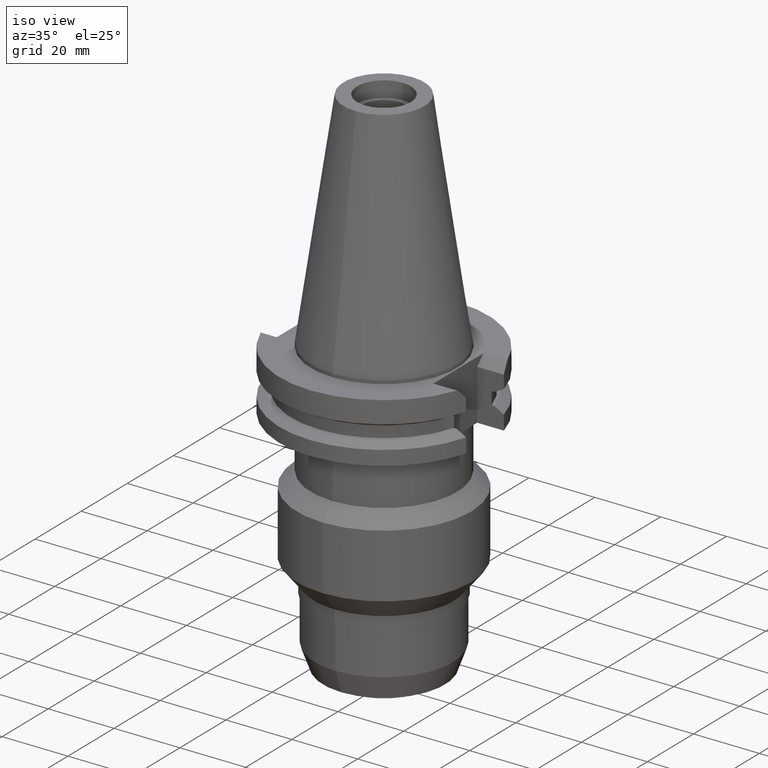
[diagram: clean part render]
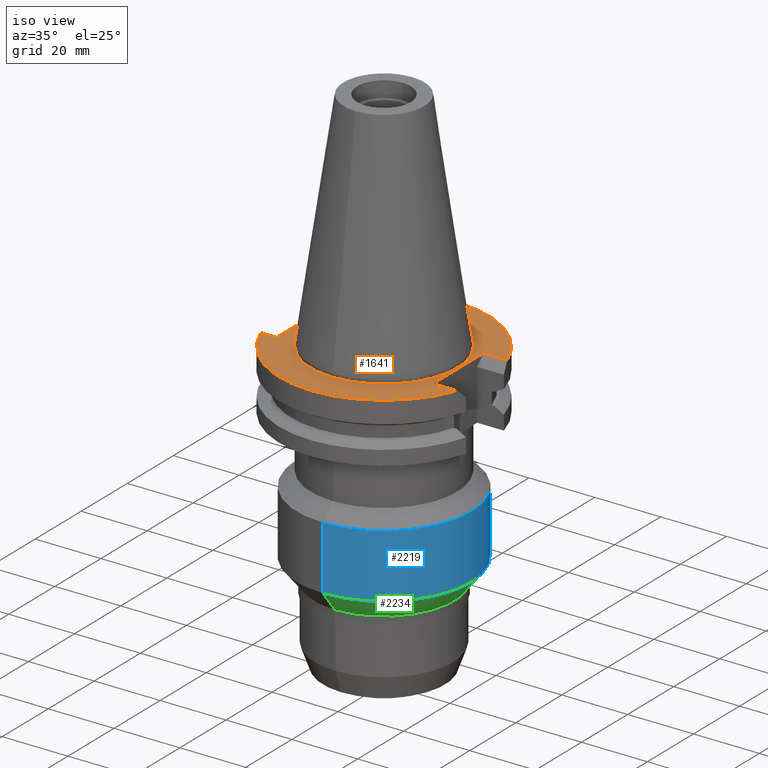
[diagram: same view with three faces highlighted in distinct colors, each labeled with its STEP entity id]
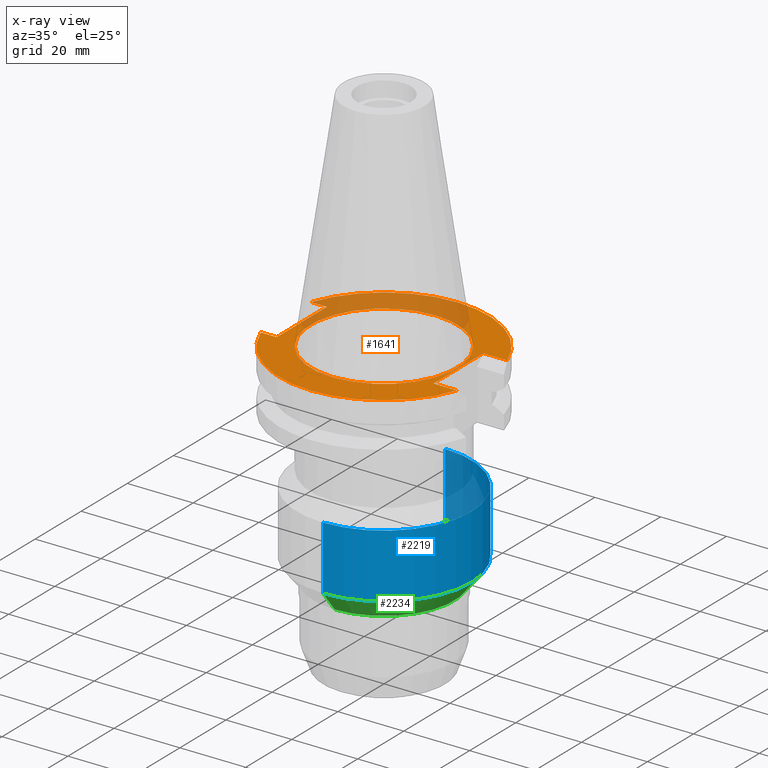
[diagram: x-ray of the same camera — body ghosted, the three highlighted faces saturated]
A machine part, iso view with three faces highlighted in distinct colors.
The next image is the same camera in x-ray (body ghosted, the three faces saturated) — at least one of them is partly hidden behind the body in this view.
Their STEP definitions:

[orange] entity #1641 — the highlighted planar face has unit normal (0, 0, -1).
#94=DIRECTION('',(0.E0,-1.E0,0.E0));
#95=VECTOR('',#94,2.178E1);
#96=CARTESIAN_POINT('',(2.257E1,1.089E1,-1.E0));
#97=LINE('',#96,#95);
#101=DIRECTION('',(1.E0,5.877118954908E-14,0.E0));
#102=VECTOR('',#101,7.253990343347E0);
#103=CARTESIAN_POINT('',(2.257E1,-1.089E1,-1.E0));
#104=LINE('',#103,#102);
#108=CARTESIAN_POINT('',(0.E0,2.157919508608E-14,-1.E0));
#109=DIRECTION('',(0.E0,0.E0,-1.E0));
#110=DIRECTION('',(9.393382785306E-1,-3.429921259843E-1,0.E0));
#111=AXIS2_PLACEMENT_3D('',#108,#109,#110);
#116=CARTESIAN_POINT('',(0.E0,2.157919508608E-14,-1.E0));
#117=DIRECTION('',(0.E0,0.E0,-1.E0));
#118=DIRECTION('',(0.E0,-1.E0,0.E0));
#119=AXIS2_PLACEMENT_3D('',#116,#117,#118);
#124=DIRECTION('',(-1.E0,-8.727782216946E-14,0.E0));
#125=VECTOR('',#124,4.843990343348E0);
#126=CARTESIAN_POINT('',(-2.498E1,1.089E1,-1.E0));
#127=LINE('',#126,#125);
#131=CARTESIAN_POINT('',(0.E0,2.157919508608E-14,-1.E0));
#132=DIRECTION('',(0.E0,0.E0,-1.E0));
#133=DIRECTION('',(-9.393382785306E-1,3.429921259843E-1,0.E0));
#134=AXIS2_PLACEMENT_3D('',#131,#132,#133);
#139=CARTESIAN_POINT('',(0.E0,2.157919508608E-14,-1.E0));
#140=DIRECTION('',(0.E0,0.E0,-1.E0));
#141=DIRECTION('',(0.E0,1.E0,0.E0));
#142=AXIS2_PLACEMENT_3D('',#139,#140,#141);
#147=CARTESIAN_POINT('',(0.E0,2.157919508608E-14,-1.E0));
#148=DIRECTION('',(0.E0,0.E0,1.E0));
#149=DIRECTION('',(0.E0,-1.E0,0.E0));
#150=AXIS2_PLACEMENT_3D('',#147,#148,#149);
#155=CARTESIAN_POINT('',(0.E0,2.157919508608E-14,-1.E0));
#156=DIRECTION('',(0.E0,0.E0,1.E0));
#157=DIRECTION('',(0.E0,1.E0,0.E0));
#158=AXIS2_PLACEMENT_3D('',#155,#156,#157);
#291=DIRECTION('',(1.E0,-5.779166972326E-14,0.E0));
#292=VECTOR('',#291,7.253990343348E0);
#293=CARTESIAN_POINT('',(2.257E1,1.089E1,-1.E0));
#294=LINE('',#293,#292);
#308=CARTESIAN_POINT('',(2.982399034335E1,1.089E1,-1.000000000001E0));
#335=DIRECTION('',(0.E0,-1.E0,0.E0));
#336=VECTOR('',#335,2.178E1);
#337=CARTESIAN_POINT('',(-2.498E1,1.089E1,-1.E0));
#338=LINE('',#337,#336);
#561=DIRECTION('',(-1.E0,8.727782216946E-14,0.E0));
#562=VECTOR('',#561,4.843990343348E0);
#563=CARTESIAN_POINT('',(-2.498E1,-1.089E1,-1.E0));
#564=LINE('',#563,#562);
#575=CARTESIAN_POINT('',(2.982399034335E1,-1.089E1,-1.000000000001E0));
#600=CARTESIAN_POINT('',(-2.982399034335E1,-1.089E1,-1.000000000001E0));
#1424=CARTESIAN_POINT('',(2.257E1,-1.089E1,-1.E0));
#1425=VERTEX_POINT('',#1424);
#1426=CARTESIAN_POINT('',(2.257E1,1.089E1,-1.E0));
#1427=VERTEX_POINT('',#1426);
#1467=CARTESIAN_POINT('',(-2.498E1,1.089E1,-1.E0));
#1468=VERTEX_POINT('',#1467);
#1469=CARTESIAN_POINT('',(-2.498E1,-1.089E1,-1.E0));
#1470=VERTEX_POINT('',#1469);
#1513=VERTEX_POINT('',#575);
#1514=VERTEX_POINT('',#600);
#1515=CARTESIAN_POINT('',(0.E0,-3.175E1,-1.E0));
#1516=VERTEX_POINT('',#1515);
#1519=VERTEX_POINT('',#308);
#1520=CARTESIAN_POINT('',(0.E0,3.175E1,-1.E0));
#1521=VERTEX_POINT('',#1520);
#1522=CARTESIAN_POINT('',(-2.982399034335E1,1.089E1,-1.E0));
#1523=VERTEX_POINT('',#1522);
#1524=CARTESIAN_POINT('',(0.E0,-2.2225E1,-1.E0));
#1525=CARTESIAN_POINT('',(0.E0,2.2225E1,-1.E0));
#1526=VERTEX_POINT('',#1524);
#1527=VERTEX_POINT('',#1525);
#1610=CARTESIAN_POINT('',(0.E0,1.212400331156E-14,-1.E0));
#1611=DIRECTION('',(0.E0,0.E0,-1.E0));
#1612=DIRECTION('',(0.E0,-1.E0,0.E0));
#1613=AXIS2_PLACEMENT_3D('',#1610,#1611,#1612);
#1614=PLANE('',#1613);
#1616=ORIENTED_EDGE('',*,*,#1615,.T.);
#1618=ORIENTED_EDGE('',*,*,#1617,.T.);
#1620=ORIENTED_EDGE('',*,*,#1619,.T.);
#1622=ORIENTED_EDGE('',*,*,#1621,.T.);
#1624=ORIENTED_EDGE('',*,*,#1623,.F.);
#1626=ORIENTED_EDGE('',*,*,#1625,.F.);
#1628=ORIENTED_EDGE('',*,*,#1627,.T.);
#1630=ORIENTED_EDGE('',*,*,#1629,.T.);
#1632=ORIENTED_EDGE('',*,*,#1631,.T.);
#1634=ORIENTED_EDGE('',*,*,#1633,.F.);
#1635=EDGE_LOOP('',(#1616,#1618,#1620,#1622,#1624,#1626,#1628,#1630,#1632,
#1634));
#1636=FACE_OUTER_BOUND('',#1635,.F.);
#1637=ORIENTED_EDGE('',*,*,#1589,.T.);
#1638=ORIENTED_EDGE('',*,*,#1605,.T.);
#1639=EDGE_LOOP('',(#1637,#1638));
#1640=FACE_BOUND('',#1639,.F.);
#112=CIRCLE('',#111,3.175E1);
#120=CIRCLE('',#119,3.175E1);
#135=CIRCLE('',#134,3.175E1);
#143=CIRCLE('',#142,3.175E1);
#151=CIRCLE('',#150,2.2225E1);
#159=CIRCLE('',#158,2.2225E1);
#1589=EDGE_CURVE('',#1526,#1527,#151,.T.);
#1605=EDGE_CURVE('',#1527,#1526,#159,.T.);
#1615=EDGE_CURVE('',#1427,#1425,#97,.T.);
#1617=EDGE_CURVE('',#1425,#1513,#104,.T.);
#1619=EDGE_CURVE('',#1513,#1516,#112,.T.);
#1621=EDGE_CURVE('',#1516,#1514,#120,.T.);
#1623=EDGE_CURVE('',#1470,#1514,#564,.T.);
#1625=EDGE_CURVE('',#1468,#1470,#338,.T.);
#1627=EDGE_CURVE('',#1468,#1523,#127,.T.);
#1629=EDGE_CURVE('',#1523,#1521,#135,.T.);
#1631=EDGE_CURVE('',#1521,#1519,#143,.T.);
#1633=EDGE_CURVE('',#1427,#1519,#294,.T.);
#1641=ADVANCED_FACE('',(#1636,#1640),#1614,.F.);

[blue] entity #2219 — the highlighted cylindrical surface (partial cylindrical patch) has radius 26.5 mm, axis along (0, 0, -1).
#869=CARTESIAN_POINT('',(0.E0,0.E0,-3.9275E1));
#870=DIRECTION('',(0.E0,0.E0,-1.E0));
#871=DIRECTION('',(0.E0,1.E0,0.E0));
#872=AXIS2_PLACEMENT_3D('',#869,#870,#871);
#908=DIRECTION('',(0.E0,-1.135593627929E-14,-1.E0));
#909=VECTOR('',#908,1.939674921278E1);
#910=CARTESIAN_POINT('',(0.E0,-2.65E1,-3.9275E1));
#911=LINE('',#910,#909);
#915=DIRECTION('',(0.E0,1.172225680442E-14,-1.E0));
#916=VECTOR('',#915,1.939674921278E1);
#917=CARTESIAN_POINT('',(0.E0,2.65E1,-3.9275E1));
#918=LINE('',#917,#916);
#937=CARTESIAN_POINT('',(0.E0,0.E0,-5.867174921278E1));
#938=DIRECTION('',(0.E0,0.E0,1.E0));
#939=DIRECTION('',(0.E0,-1.E0,0.E0));
#940=AXIS2_PLACEMENT_3D('',#937,#938,#939);
#1386=CARTESIAN_POINT('',(0.E0,2.65E1,-5.867174921278E1));
#1387=VERTEX_POINT('',#1386);
#1388=CARTESIAN_POINT('',(0.E0,-2.65E1,-5.867174921278E1));
#1389=VERTEX_POINT('',#1388);
#1390=CARTESIAN_POINT('',(0.E0,2.65E1,-3.9275E1));
#1391=VERTEX_POINT('',#1390);
#1392=CARTESIAN_POINT('',(0.E0,-2.65E1,-3.9275E1));
#1393=VERTEX_POINT('',#1392);
#2207=CARTESIAN_POINT('',(0.E0,2.157919508608E-14,7.62075E1));
#2208=DIRECTION('',(0.E0,0.E0,-1.E0));
#2209=DIRECTION('',(0.E0,-1.E0,0.E0));
#2210=AXIS2_PLACEMENT_3D('',#2207,#2208,#2209);
#2211=CYLINDRICAL_SURFACE('',#2210,2.65E1);
#2212=ORIENTED_EDGE('',*,*,#2197,.T.);
#2214=ORIENTED_EDGE('',*,*,#2213,.F.);
#2215=ORIENTED_EDGE('',*,*,#2200,.F.);
#2216=ORIENTED_EDGE('',*,*,#2171,.F.);
#2217=EDGE_LOOP('',(#2212,#2214,#2215,#2216));
#2218=FACE_OUTER_BOUND('',#2217,.F.);
#873=CIRCLE('',#872,2.65E1);
#941=CIRCLE('',#940,2.65E1);
#2171=EDGE_CURVE('',#1391,#1393,#873,.T.);
#2197=EDGE_CURVE('',#1391,#1387,#918,.T.);
#2200=EDGE_CURVE('',#1393,#1389,#911,.T.);
#2213=EDGE_CURVE('',#1389,#1387,#941,.T.);
#2219=ADVANCED_FACE('',(#2218),#2211,.T.);

[green] entity #2234 — the highlighted conical surface has half-angle 38.7 deg.
#922=DIRECTION('',(0.E0,-6.252426563357E-1,-7.804304073384E-1));
#923=VECTOR('',#922,8.236802060472E0);
#924=CARTESIAN_POINT('',(0.E0,2.65E1,-5.867174921278E1));
#925=LINE('',#924,#923);
#929=CARTESIAN_POINT('',(0.E0,0.E0,-6.51E1));
#930=DIRECTION('',(0.E0,0.E0,-1.E0));
#931=DIRECTION('',(0.E0,1.E0,0.E0));
#932=AXIS2_PLACEMENT_3D('',#929,#930,#931);
#937=CARTESIAN_POINT('',(0.E0,0.E0,-5.867174921278E1));
#938=DIRECTION('',(0.E0,0.E0,1.E0));
#939=DIRECTION('',(0.E0,-1.E0,0.E0));
#940=AXIS2_PLACEMENT_3D('',#937,#938,#939);
#953=DIRECTION('',(0.E0,6.252426563357E-1,-7.804304073384E-1));
#954=VECTOR('',#953,8.236802060472E0);
#955=CARTESIAN_POINT('',(0.E0,-2.65E1,-5.867174921278E1));
#956=LINE('',#955,#954);
#1382=CARTESIAN_POINT('',(0.E0,2.135E1,-6.51E1));
#1383=VERTEX_POINT('',#1382);
#1384=CARTESIAN_POINT('',(0.E0,-2.135E1,-6.51E1));
#1385=VERTEX_POINT('',#1384);
#1386=CARTESIAN_POINT('',(0.E0,2.65E1,-5.867174921278E1));
#1387=VERTEX_POINT('',#1386);
#1388=CARTESIAN_POINT('',(0.E0,-2.65E1,-5.867174921278E1));
#1389=VERTEX_POINT('',#1388);
#2220=CARTESIAN_POINT('',(0.E0,0.E0,-6.188587460639E1));
#2221=DIRECTION('',(0.E0,0.E0,1.E0));
#2222=DIRECTION('',(0.E0,1.E0,0.E0));
#2223=AXIS2_PLACEMENT_3D('',#2220,#2221,#2222);
#2224=CONICAL_SURFACE('',#2223,2.3925E1,3.87E1);
#2226=ORIENTED_EDGE('',*,*,#2225,.T.);
#2228=ORIENTED_EDGE('',*,*,#2227,.T.);
#2230=ORIENTED_EDGE('',*,*,#2229,.F.);
#2231=ORIENTED_EDGE('',*,*,#2213,.T.);
#2232=EDGE_LOOP('',(#2226,#2228,#2230,#2231));
#2233=FACE_OUTER_BOUND('',#2232,.F.);
#933=CIRCLE('',#932,2.135E1);
#941=CIRCLE('',#940,2.65E1);
#2213=EDGE_CURVE('',#1389,#1387,#941,.T.);
#2225=EDGE_CURVE('',#1387,#1383,#925,.T.);
#2227=EDGE_CURVE('',#1383,#1385,#933,.T.);
#2229=EDGE_CURVE('',#1389,#1385,#956,.T.);
#2234=ADVANCED_FACE('',(#2233),#2224,.T.);